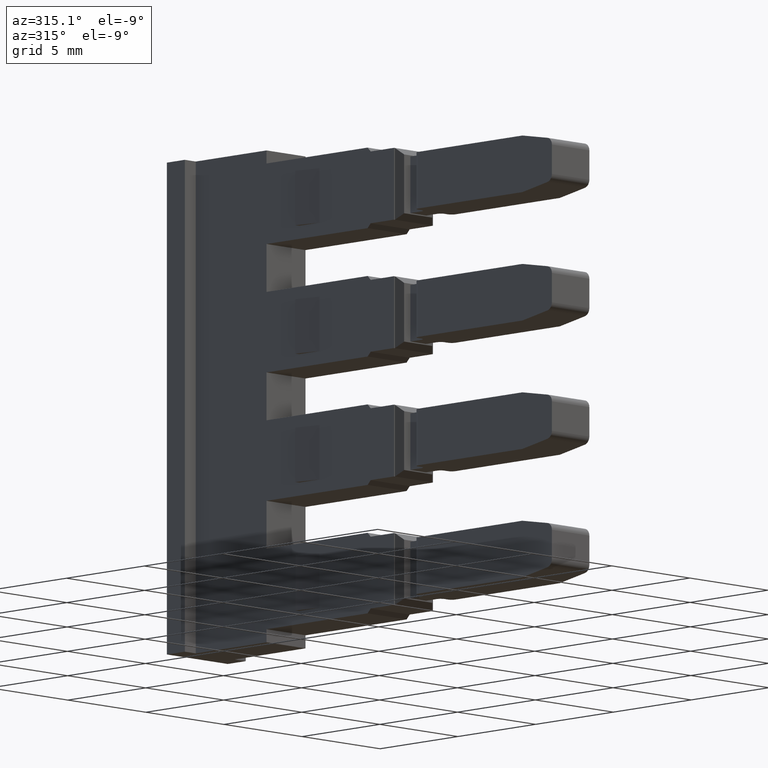
[diagram: clean part render]
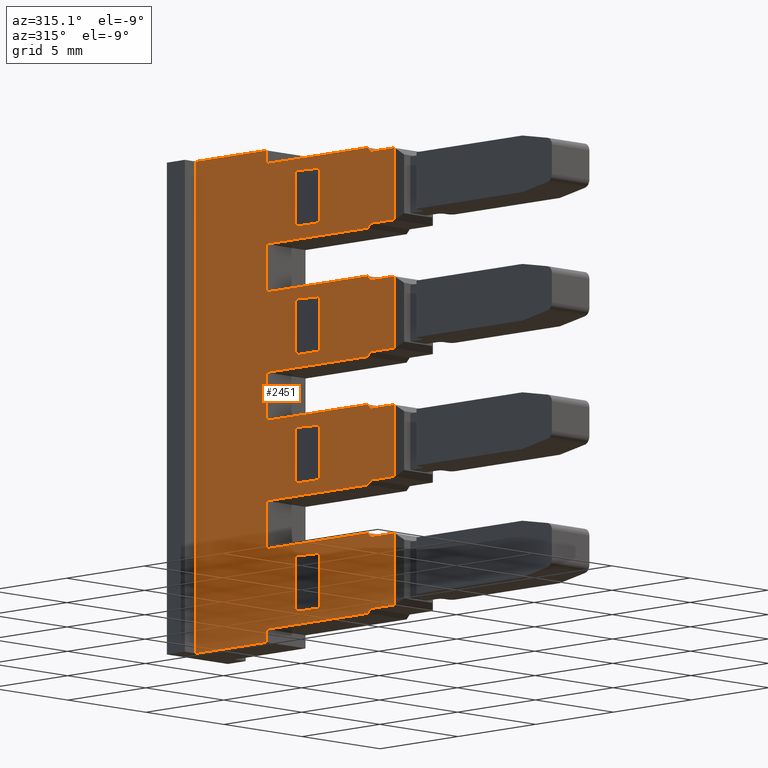
[diagram: same view with one face highlighted and labeled with its STEP entity id]
A machine part, auxiliary view. The second image highlights one B-rep face of the part: STEP entity #2451.
In plain terms, the highlighted planar face has unit normal (1, -0, 0).
Its self-contained STEP definition (entity closure, byte-faithful):
#236 = EDGE_LOOP ( 'NONE', ( #4934, #4998, #5008, #4992, #5015, #4952, #4900, #4958, #5026, #4931, #4944, #4908, #4942, #4948, #5006, #4910, #4930, #4912, #4957, #4914, #4950, #4967, #4961, #4907, #4946, #4902, #4923, #4919, #4983, #5003, #4932, #4964, #4901, #5002, #5005, #5018 ) ) ;
#244 = EDGE_LOOP ( 'NONE', ( #4903, #4904, #4949, #4951 ) ) ;
#265 = EDGE_LOOP ( 'NONE', ( #4975, #4959, #4943, #5024 ) ) ;
#274 = EDGE_LOOP ( 'NONE', ( #5020, #4965, #4915, #4940 ) ) ;
#281 = EDGE_LOOP ( 'NONE', ( #4993, #4947, #4911, #4916 ) ) ;
#493 = LINE ( 'NONE', #522, #1699 ) ;
#519 = DIRECTION ( 'NONE',  ( 0.0000000000000000000, -1.000000000000000000, 3.397305977084603400E-014 ) ) ;
#522 = CARTESIAN_POINT ( 'NONE',  ( 1456.769071211365800, 1003.994679537520100, -83.64999999998819600 ) ) ;
#537 = LINE ( 'NONE', #539, #1671 ) ;
#539 = CARTESIAN_POINT ( 'NONE',  ( 1456.769071211365800, 995.7946795375190700, -81.14999999999173500 ) ) ;
#557 = DIRECTION ( 'NONE',  ( 0.0000000000000000000, -5.266048633100518400E-014, 1.000000000000000000 ) ) ;
#560 = DIRECTION ( 'NONE',  ( 0.0000000000000000000, 0.0000000000000000000, -1.000000000000000000 ) ) ;
#575 = CARTESIAN_POINT ( 'NONE',  ( 1456.769071211365800, 1003.994679537513400, -100.1158559843420100 ) ) ;
#579 = LINE ( 'NONE', #575, #1676 ) ;
#605 = CARTESIAN_POINT ( 'NONE',  ( 1456.769071211365800, 995.7926795375192300, -100.1158559843420100 ) ) ;
#608 = DIRECTION ( 'NONE',  ( 0.0000000000000000000, -0.7071067811881911500, -0.7071067811849037800 ) ) ;
#616 = LINE ( 'NONE', #663, #1781 ) ;
#619 = LINE ( 'NONE', #625, #1732 ) ;
#625 = CARTESIAN_POINT ( 'NONE',  ( 1456.769071211365800, 1003.994679537520100, -83.64999999998819600 ) ) ;
#628 = DIRECTION ( 'NONE',  ( 0.0000000000000000000, -5.266048633100518400E-014, 1.000000000000000000 ) ) ;
#636 = LINE ( 'NONE', #649, #1756 ) ;
#640 = LINE ( 'NONE', #605, #1693 ) ;
#646 = DIRECTION ( 'NONE',  ( 0.0000000000000000000, 0.0000000000000000000, -1.000000000000000000 ) ) ;
#649 = CARTESIAN_POINT ( 'NONE',  ( 1456.769071211365800, 997.4946795375115000, -89.44999999998889000 ) ) ;
#654 = DIRECTION ( 'NONE',  ( 0.0000000000000000000, 1.000000000000000000, 0.0000000000000000000 ) ) ;
#662 = CARTESIAN_POINT ( 'NONE',  ( 1456.769071211365800, 997.4946795375182100, -77.64999999999381000 ) ) ;
#663 = CARTESIAN_POINT ( 'NONE',  ( 1456.769071211365800, 997.4946795375185500, -77.64999999999025700 ) ) ;
#664 = DIRECTION ( 'NONE',  ( 0.0000000000000000000, -1.000000000000000000, -9.317217804676702700E-014 ) ) ;
#665 = LINE ( 'NONE', #691, #1737 ) ;
#672 = DIRECTION ( 'NONE',  ( 0.0000000000000000000, -0.7071067811865999800, -0.7071067811864950600 ) ) ;
#673 = LINE ( 'NONE', #662, #1774 ) ;
#676 = CARTESIAN_POINT ( 'NONE',  ( 1456.769071211366100, 1000.592679537514000, -78.25000000009424600 ) ) ;
#678 = LINE ( 'NONE', #676, #1736 ) ;
#691 = CARTESIAN_POINT ( 'NONE',  ( 1456.769071211365800, 1007.642679537518000, -77.84999999999017500 ) ) ;
#692 = DIRECTION ( 'NONE',  ( -0.0000000000000000000, -1.000000000000000000, -0.0000000000000000000 ) ) ;
#741 = LINE ( 'NONE', #768, #1782 ) ;
#743 = LINE ( 'NONE', #756, #1741 ) ;
#745 = DIRECTION ( 'NONE',  ( 0.0000000000000000000, -1.000000000000000000, -9.317217804676702700E-014 ) ) ;
#748 = CARTESIAN_POINT ( 'NONE',  ( 1456.769071211365800, 1004.894679537514000, -77.04999999999309100 ) ) ;
#750 = LINE ( 'NONE', #767, #1778 ) ;
#753 = LINE ( 'NONE', #748, #1724 ) ;
#756 = CARTESIAN_POINT ( 'NONE',  ( 1456.769071211365800, 997.4946795375182100, -81.34999999999109800 ) ) ;
#757 = LINE ( 'NONE', #774, #1775 ) ;
#759 = DIRECTION ( 'NONE',  ( -1.843447636399818300E-030, 1.000000000000000000, 3.582728517178750100E-016 ) ) ;
#760 = DIRECTION ( 'NONE',  ( 0.0000000000000000000, 0.0000000000000000000, -1.000000000000000000 ) ) ;
#763 = CARTESIAN_POINT ( 'NONE',  ( 1456.769071211365800, 1001.106402704003100, -92.94999999998999800 ) ) ;
#764 = LINE ( 'NONE', #785, #1779 ) ;
#765 = DIRECTION ( 'NONE',  ( 0.0000000000000000000, 0.7071067811877986800, -0.7071067811852963500 ) ) ;
#767 = CARTESIAN_POINT ( 'NONE',  ( 1456.769071211365800, 1003.994679537506500, -106.0158559843420000 ) ) ;
#768 = CARTESIAN_POINT ( 'NONE',  ( 1456.769071211365800, 997.4946795375112700, -89.44999999998903200 ) ) ;
#771 = DIRECTION ( 'NONE',  ( 0.0000000000000000000, 0.7071067811902275200, -0.7071067811828676300 ) ) ;
#774 = CARTESIAN_POINT ( 'NONE',  ( 1456.769071211365800, 997.2946795375179400, -81.14999999999176300 ) ) ;
#777 = DIRECTION ( 'NONE',  ( 0.0000000000000000000, 1.000000000000000000, 6.401193638283150300E-015 ) ) ;
#780 = DIRECTION ( 'NONE',  ( -3.766016875894430600E-044, -1.000000000000000000, -2.195768806939460200E-029 ) ) ;
#782 = LINE ( 'NONE', #763, #1773 ) ;
#785 = CARTESIAN_POINT ( 'NONE',  ( 1456.769071211365800, 997.2946795375111200, -92.94999999998997000 ) ) ;
#791 = LINE ( 'NONE', #798, #1826 ) ;
#793 = CARTESIAN_POINT ( 'NONE',  ( 1456.769071211366100, 1001.892679537514000, -80.75000000009424600 ) ) ;
#794 = DIRECTION ( 'NONE',  ( 0.0000000000000000000, 0.0000000000000000000, 1.000000000000000000 ) ) ;
#798 = CARTESIAN_POINT ( 'NONE',  ( 1456.769071211365800, 997.2946795375181600, -87.04999999998996400 ) ) ;
#799 = LINE ( 'NONE', #793, #1846 ) ;
#804 = DIRECTION ( 'NONE',  ( 0.0000000000000000000, 0.7071067811902275200, -0.7071067811828676300 ) ) ;
#805 = LINE ( 'NONE', #824, #1795 ) ;
#806 = DIRECTION ( 'NONE',  ( 0.0000000000000000000, 1.000000000000000000, 3.433133262256396200E-014 ) ) ;
#824 = CARTESIAN_POINT ( 'NONE',  ( 1456.769071211365800, 995.7946795375052000, -95.54999999998840100 ) ) ;
#843 = CARTESIAN_POINT ( 'NONE',  ( 1456.769071211365800, 997.4946795375112700, -93.14999999998640600 ) ) ;
#848 = CARTESIAN_POINT ( 'NONE',  ( 1456.769071211365400, 1000.592679537514600, -86.65000000009425200 ) ) ;
#849 = DIRECTION ( 'NONE',  ( 0.0000000000000000000, 1.000000000000000000, 0.0000000000000000000 ) ) ;
#851 = LINE ( 'NONE', #862, #1820 ) ;
#852 = DIRECTION ( 'NONE',  ( 0.0000000000000000000, 1.000000000000000000, -9.281390519504917400E-014 ) ) ;
#861 = CARTESIAN_POINT ( 'NONE',  ( 1456.769071211365800, 995.7926795375053600, -111.9158559843420000 ) ) ;
#862 = CARTESIAN_POINT ( 'NONE',  ( 1456.769071211365400, 1001.892679537507800, -92.55000000009425800 ) ) ;
#872 = DIRECTION ( 'NONE',  ( 0.0000000000000000000, 0.0000000000000000000, 1.000000000000000000 ) ) ;
#873 = LINE ( 'NONE', #848, #1821 ) ;
#874 = LINE ( 'NONE', #843, #1824 ) ;
#875 = LINE ( 'NONE', #861, #1833 ) ;
#876 = DIRECTION ( 'NONE',  ( 0.0000000000000000000, 0.0000000000000000000, -1.000000000000000000 ) ) ;
#878 = LINE ( 'NONE', #888, #1796 ) ;
#885 = LINE ( 'NONE', #919, #1787 ) ;
#886 = CARTESIAN_POINT ( 'NONE',  ( 1456.769071211365800, 1004.894679537500000, -99.64999999998701700 ) ) ;
#888 = CARTESIAN_POINT ( 'NONE',  ( 1456.769071211366100, 1000.592679537514000, -80.75000000009424600 ) ) ;
#896 = DIRECTION ( 'NONE',  ( 0.0000000000000000000, 1.000000000000000000, 0.0000000000000000000 ) ) ;
#897 = DIRECTION ( 'NONE',  ( 0.0000000000000000000, 1.000000000000000000, 0.0000000000000000000 ) ) ;
#898 = CARTESIAN_POINT ( 'NONE',  ( 1456.769071211365800, 997.4946795375182100, -83.54999999998904100 ) ) ;
#899 = DIRECTION ( 'NONE',  ( -3.766016875894430600E-044, -1.000000000000000000, -2.195768806939460200E-029 ) ) ;
#900 = LINE ( 'NONE', #937, #1831 ) ;
#901 = LINE ( 'NONE', #886, #1788 ) ;
#905 = DIRECTION ( 'NONE',  ( 0.0000000000000000000, 1.000000000000000000, -9.281390519504917400E-014 ) ) ;
#906 = LINE ( 'NONE', #913, #1790 ) ;
#909 = LINE ( 'NONE', #921, #1814 ) ;
#913 = CARTESIAN_POINT ( 'NONE',  ( 1456.769071211365400, 1000.592679537507700, -90.05000000009424400 ) ) ;
#919 = CARTESIAN_POINT ( 'NONE',  ( 1456.769071211365800, 995.7926795375123000, -106.0158559843420000 ) ) ;
#920 = LINE ( 'NONE', #898, #1835 ) ;
#921 = CARTESIAN_POINT ( 'NONE',  ( 1456.769071211365800, 1001.106402703996000, -98.84999999999000400 ) ) ;
#923 = DIRECTION ( 'NONE',  ( 0.0000000000000000000, 1.000000000000000000, 6.401193638283150300E-015 ) ) ;
#926 = DIRECTION ( 'NONE',  ( 0.0000000000000000000, 0.0000000000000000000, -1.000000000000000000 ) ) ;
#927 = LINE ( 'NONE', #956, #1840 ) ;
#930 = CARTESIAN_POINT ( 'NONE',  ( 1456.769071211366100, 1000.592679537514000, -80.75000000009424600 ) ) ;
#931 = DIRECTION ( 'NONE',  ( 0.0000000000000000000, 0.0000000000000000000, 1.000000000000000000 ) ) ;
#936 = LINE ( 'NONE', #940, #1798 ) ;
#937 = CARTESIAN_POINT ( 'NONE',  ( 1456.769071211365800, 1008.542679537515100, -100.1158559843420100 ) ) ;
#940 = CARTESIAN_POINT ( 'NONE',  ( 1456.769071211365800, 995.7946795375121400, -89.64999999998841000 ) ) ;
#950 = DIRECTION ( 'NONE',  ( 0.0000000000000000000, 1.000000000000000000, 0.0000000000000000000 ) ) ;
#953 = DIRECTION ( 'NONE',  ( 0.0000000000000000000, 1.000000000000000000, 3.433133262256396200E-014 ) ) ;
#956 = CARTESIAN_POINT ( 'NONE',  ( 1456.769071211365400, 1000.592679537500700, -98.45000000009424900 ) ) ;
#959 = LINE ( 'NONE', #930, #1801 ) ;
#960 = DIRECTION ( 'NONE',  ( -0.0000000000000000000, -0.0000000000000000000, 1.000000000000000000 ) ) ;
#1154 = VECTOR ( 'NONE', #3882, 1000.000000000000000 ) ;
#1157 = VECTOR ( 'NONE', #3876, 1000.000000000000000 ) ;
#1169 = VECTOR ( 'NONE', #3867, 1000.000000000000100 ) ;
#1191 = VECTOR ( 'NONE', #3861, 1000.000000000000000 ) ;
#1193 = VECTOR ( 'NONE', #3902, 1000.000000000000000 ) ;
#1211 = VECTOR ( 'NONE', #3858, 1000.000000000000000 ) ;
#1213 = VECTOR ( 'NONE', #3872, 1000.000000000000000 ) ;
#1466 = AXIS2_PLACEMENT_3D ( 'NONE', #2754, #2747, #2716 ) ;
#1671 = VECTOR ( 'NONE', #519, 1000.000000000000000 ) ;
#1676 = VECTOR ( 'NONE', #560, 1000.000000000000000 ) ;
#1693 = VECTOR ( 'NONE', #646, 1000.000000000000000 ) ;
#1699 = VECTOR ( 'NONE', #557, 1000.000000000000000 ) ;
#1724 = VECTOR ( 'NONE', #745, 1000.000000000000000 ) ;
#1732 = VECTOR ( 'NONE', #628, 1000.000000000000000 ) ;
#1736 = VECTOR ( 'NONE', #654, 1000.000000000000000 ) ;
#1737 = VECTOR ( 'NONE', #692, 1000.000000000000000 ) ;
#1741 = VECTOR ( 'NONE', #759, 1000.000000000000000 ) ;
#1756 = VECTOR ( 'NONE', #608, 1000.000000000000100 ) ;
#1773 = VECTOR ( 'NONE', #777, 1000.000000000000000 ) ;
#1774 = VECTOR ( 'NONE', #664, 1000.000000000000000 ) ;
#1775 = VECTOR ( 'NONE', #765, 1000.000000000000000 ) ;
#1778 = VECTOR ( 'NONE', #760, 1000.000000000000000 ) ;
#1779 = VECTOR ( 'NONE', #771, 1000.000000000000000 ) ;
#1781 = VECTOR ( 'NONE', #672, 1000.000000000000000 ) ;
#1782 = VECTOR ( 'NONE', #780, 1000.000000000000000 ) ;
#1787 = VECTOR ( 'NONE', #926, 1000.000000000000000 ) ;
#1788 = VECTOR ( 'NONE', #905, 1000.000000000000000 ) ;
#1790 = VECTOR ( 'NONE', #897, 1000.000000000000000 ) ;
#1795 = VECTOR ( 'NONE', #806, 1000.000000000000000 ) ;
#1796 = VECTOR ( 'NONE', #896, 1000.000000000000000 ) ;
#1798 = VECTOR ( 'NONE', #953, 1000.000000000000000 ) ;
#1801 = VECTOR ( 'NONE', #931, 1000.000000000000000 ) ;
#1814 = VECTOR ( 'NONE', #923, 1000.000000000000000 ) ;
#1820 = VECTOR ( 'NONE', #872, 1000.000000000000000 ) ;
#1821 = VECTOR ( 'NONE', #849, 1000.000000000000000 ) ;
#1824 = VECTOR ( 'NONE', #852, 1000.000000000000000 ) ;
#1826 = VECTOR ( 'NONE', #804, 1000.000000000000000 ) ;
#1831 = VECTOR ( 'NONE', #960, 1000.000000000000000 ) ;
#1833 = VECTOR ( 'NONE', #876, 1000.000000000000000 ) ;
#1835 = VECTOR ( 'NONE', #899, 1000.000000000000000 ) ;
#1840 = VECTOR ( 'NONE', #950, 1000.000000000000000 ) ;
#1846 = VECTOR ( 'NONE', #794, 1000.000000000000000 ) ;
#1853 = VECTOR ( 'NONE', #3760, 1000.000000000000000 ) ;
#1857 = VECTOR ( 'NONE', #3806, 1000.000000000000100 ) ;
#1870 = VECTOR ( 'NONE', #4738, 1000.000000000000000 ) ;
#1876 = VECTOR ( 'NONE', #3832, 1000.000000000000000 ) ;
#1881 = VECTOR ( 'NONE', #4710, 1000.000000000000000 ) ;
#1882 = VECTOR ( 'NONE', #3791, 1000.000000000000000 ) ;
#1883 = VECTOR ( 'NONE', #3831, 1000.000000000000000 ) ;
#1885 = VECTOR ( 'NONE', #3801, 1000.000000000000000 ) ;
#1889 = VECTOR ( 'NONE', #4707, 1000.000000000000000 ) ;
#1891 = VECTOR ( 'NONE', #3756, 1000.000000000000000 ) ;
#1896 = VECTOR ( 'NONE', #4715, 1000.000000000000000 ) ;
#1935 = EDGE_CURVE ( 'NONE', #5254, #5233, #493, .T. ) ;
#1946 = EDGE_CURVE ( 'NONE', #5327, #5267, #537, .T. ) ;
#1955 = EDGE_CURVE ( 'NONE', #5264, #5248, #579, .T. ) ;
#1968 = EDGE_CURVE ( 'NONE', #5266, #5267, #640, .T. ) ;
#1970 = EDGE_CURVE ( 'NONE', #5355, #5394, #636, .T. ) ;
#1979 = EDGE_CURVE ( 'NONE', #5359, #5244, #619, .T. ) ;
#1984 = EDGE_CURVE ( 'NONE', #5275, #5252, #616, .T. ) ;
#1991 = EDGE_CURVE ( 'NONE', #5252, #5266, #665, .T. ) ;
#1992 = EDGE_CURVE ( 'NONE', #5309, #5299, #678, .T. ) ;
#1994 = EDGE_CURVE ( 'NONE', #5248, #5275, #673, .T. ) ;
#2011 = EDGE_CURVE ( 'NONE', #5327, #5316, #757, .T. ) ;
#2013 = EDGE_CURVE ( 'NONE', #5298, #5281, #764, .T. ) ;
#2016 = EDGE_CURVE ( 'NONE', #5280, #5298, #782, .T. ) ;
#2017 = EDGE_CURVE ( 'NONE', #5295, #5338, #750, .T. ) ;
#2019 = EDGE_CURVE ( 'NONE', #5254, #5355, #741, .T. ) ;
#2022 = EDGE_CURVE ( 'NONE', #5232, #5264, #753, .T. ) ;
#2024 = EDGE_CURVE ( 'NONE', #5316, #5244, #743, .T. ) ;
#2031 = EDGE_CURVE ( 'NONE', #5315, #5299, #799, .T. ) ;
#2036 = EDGE_CURVE ( 'NONE', #5366, #5353, #791, .T. ) ;
#2037 = EDGE_CURVE ( 'NONE', #5393, #5360, #805, .T. ) ;
#2045 = EDGE_CURVE ( 'NONE', #5393, #5363, #875, .T. ) ;
#2047 = EDGE_CURVE ( 'NONE', #5379, #5398, #851, .T. ) ;
#2049 = EDGE_CURVE ( 'NONE', #5281, #5295, #874, .T. ) ;
#2052 = EDGE_CURVE ( 'NONE', #5350, #5371, #873, .T. ) ;
#2058 = EDGE_CURVE ( 'NONE', #5401, #5398, #906, .T. ) ;
#2059 = EDGE_CURVE ( 'NONE', #5362, #5315, #878, .T. ) ;
#2060 = EDGE_CURVE ( 'NONE', #5363, #5381, #909, .T. ) ;
#2068 = EDGE_CURVE ( 'NONE', #5342, #5280, #885, .T. ) ;
#2070 = EDGE_CURVE ( 'NONE', #5359, #5367, #920, .T. ) ;
#2071 = EDGE_CURVE ( 'NONE', #5377, #5303, #901, .T. ) ;
#2072 = EDGE_CURVE ( 'NONE', #5343, #5369, #927, .T. ) ;
#2075 = EDGE_CURVE ( 'NONE', #5303, #5232, #900, .T. ) ;
#2081 = EDGE_CURVE ( 'NONE', #5342, #5394, #936, .T. ) ;
#2083 = EDGE_CURVE ( 'NONE', #5362, #5309, #959, .T. ) ;
#2092 = EDGE_CURVE ( 'NONE', #5402, #5370, #4726, .T. ) ;
#2093 = EDGE_CURVE ( 'NONE', #5371, #5356, #4706, .T. ) ;
#2095 = EDGE_CURVE ( 'NONE', #5372, #5368, #4733, .T. ) ;
#2096 = EDGE_CURVE ( 'NONE', #5369, #5373, #4737, .T. ) ;
#2099 = EDGE_CURVE ( 'NONE', #5368, #5366, #4709, .T. ) ;
#2101 = EDGE_CURVE ( 'NONE', #5354, #5356, #4744, .T. ) ;
#2104 = EDGE_CURVE ( 'NONE', #5358, #5401, #3757, .T. ) ;
#2114 = EDGE_CURVE ( 'NONE', #5350, #5354, #3833, .T. ) ;
#2116 = EDGE_CURVE ( 'NONE', #5367, #5351, #3790, .T. ) ;
#2118 = EDGE_CURVE ( 'NONE', #5370, #5377, #3819, .T. ) ;
#2126 = EDGE_CURVE ( 'NONE', #5353, #5233, #3820, .T. ) ;
#2134 = EDGE_CURVE ( 'NONE', #5358, #5379, #3866, .T. ) ;
#2137 = EDGE_CURVE ( 'NONE', #5338, #5380, #3817, .T. ) ;
#2140 = EDGE_CURVE ( 'NONE', #5380, #5360, #3887, .T. ) ;
#2141 = EDGE_CURVE ( 'NONE', #5372, #5351, #3888, .T. ) ;
#2142 = EDGE_CURVE ( 'NONE', #5341, #5373, #3862, .T. ) ;
#2143 = EDGE_CURVE ( 'NONE', #5343, #5341, #3878, .T. ) ;
#2148 = EDGE_CURVE ( 'NONE', #5381, #5402, #3895, .T. ) ;
#2451 = ADVANCED_FACE ( 'NONE', ( #2709, #2703, #2729, #2721, #2722 ), #2751, .F. ) ;
#2703 = FACE_BOUND ( 'NONE', #265, .T. ) ;
#2709 = FACE_OUTER_BOUND ( 'NONE', #236, .T. ) ;
#2716 = DIRECTION ( 'NONE',  ( 0.0000000000000000000, 0.0000000000000000000, -1.000000000000000000 ) ) ;
#2721 = FACE_BOUND ( 'NONE', #281, .T. ) ;
#2722 = FACE_BOUND ( 'NONE', #244, .T. ) ;
#2729 = FACE_BOUND ( 'NONE', #274, .T. ) ;
#2747 = DIRECTION ( 'NONE',  ( 1.000000000000000000, -0.0000000000000000000, 0.0000000000000000000 ) ) ;
#2751 = PLANE ( 'NONE',  #1466 ) ;
#2754 = CARTESIAN_POINT ( 'NONE',  ( 1456.769071211365800, 1007.642679537518000, -100.1158559843420100 ) ) ;
#3348 = CARTESIAN_POINT ( 'NONE',  ( 1456.769071211365800, 1003.994679537513400, -87.24999999998694000 ) ) ;
#3394 = CARTESIAN_POINT ( 'NONE',  ( 1456.769071211365800, 1008.542679537517400, -77.04999999999270700 ) ) ;
#3400 = CARTESIAN_POINT ( 'NONE',  ( 1456.769071211365800, 1003.994679537512800, -77.64999999999328400 ) ) ;
#3401 = CARTESIAN_POINT ( 'NONE',  ( 1456.769071211365800, 997.2946795375181600, -77.84999999999023100 ) ) ;
#3402 = CARTESIAN_POINT ( 'NONE',  ( 1456.769071211365800, 1003.994679537520300, -81.34999999999124000 ) ) ;
#3404 = CARTESIAN_POINT ( 'NONE',  ( 1456.769071211365800, 995.7926795375192300, -77.84999999999014600 ) ) ;
#3407 = CARTESIAN_POINT ( 'NONE',  ( 1456.769071211365800, 995.7926795375192300, -81.14999999999173500 ) ) ;
#3416 = CARTESIAN_POINT ( 'NONE',  ( 1456.769071211365800, 997.4946795375102500, -93.14999999998751400 ) ) ;
#3437 = CARTESIAN_POINT ( 'NONE',  ( 1456.769071211365800, 1003.994679537513400, -77.04999999999287800 ) ) ;
#3439 = CARTESIAN_POINT ( 'NONE',  ( 1456.769071211365800, 995.7926795375123000, -92.94999999999002700 ) ) ;
#3441 = CARTESIAN_POINT ( 'NONE',  ( 1456.769071211365800, 1003.994679537506500, -93.14999999998693200 ) ) ;
#3447 = CARTESIAN_POINT ( 'NONE',  ( 1456.769071211365800, 997.2946795375111200, -92.94999999998995600 ) ) ;
#3453 = CARTESIAN_POINT ( 'NONE',  ( 1456.769071211365800, 1003.994679537513400, -89.44999999998901800 ) ) ;
#3454 = CARTESIAN_POINT ( 'NONE',  ( 1456.769071211366100, 1001.892679537514000, -78.25000000009424600 ) ) ;
#3455 = CARTESIAN_POINT ( 'NONE',  ( 1456.769071211365800, 997.4946795375173000, -77.64999999999308500 ) ) ;
#3465 = CARTESIAN_POINT ( 'NONE',  ( 1456.769071211365800, 1003.994679537520300, -83.54999999998902600 ) ) ;
#3471 = CARTESIAN_POINT ( 'NONE',  ( 1456.769071211365400, 1001.892679537514700, -84.15000000009425200 ) ) ;
#3472 = CARTESIAN_POINT ( 'NONE',  ( 1456.769071211365800, 997.2946795375181600, -87.04999999998995000 ) ) ;
#3474 = CARTESIAN_POINT ( 'NONE',  ( 1456.769071211365800, 1001.892679537514000, -80.75000000009424600 ) ) ;
#3477 = CARTESIAN_POINT ( 'NONE',  ( 1456.769071211365800, 997.2946795375179400, -81.14999999999176300 ) ) ;
#3478 = CARTESIAN_POINT ( 'NONE',  ( 1456.769071211365800, 997.2946795375041800, -95.54999999998837300 ) ) ;
#3479 = CARTESIAN_POINT ( 'NONE',  ( 1456.769071211365800, 997.2946795375180500, -83.74999999998836100 ) ) ;
#3480 = CARTESIAN_POINT ( 'NONE',  ( 1456.769071211365800, 1000.592679537514000, -78.25000000009424600 ) ) ;
#3485 = CARTESIAN_POINT ( 'NONE',  ( 1456.769071211365800, 1000.592679537512400, -86.65000000009425200 ) ) ;
#3491 = CARTESIAN_POINT ( 'NONE',  ( 1456.769071211365800, 1003.994679537506300, -95.34999999998902400 ) ) ;
#3494 = CARTESIAN_POINT ( 'NONE',  ( 1456.769071211365800, 997.4946795375111600, -89.44999999998871900 ) ) ;
#3500 = CARTESIAN_POINT ( 'NONE',  ( 1456.769071211365800, 995.7926795375123000, -89.64999999998839500 ) ) ;
#3501 = CARTESIAN_POINT ( 'NONE',  ( 1456.769071211365800, 1000.592679537498400, -98.45000000009424900 ) ) ;
#3503 = CARTESIAN_POINT ( 'NONE',  ( 1456.769071211365800, 1008.542679537502500, -99.64999999998723000 ) ) ;
#3506 = CARTESIAN_POINT ( 'NONE',  ( 1456.769071211365800, 997.4946795375181000, -81.34999999999145400 ) ) ;
#3508 = CARTESIAN_POINT ( 'NONE',  ( 1456.769071211365800, 1000.592679537500700, -95.95000000009424900 ) ) ;
#3510 = CARTESIAN_POINT ( 'NONE',  ( 1456.769071211365800, 1000.592679537514600, -84.15000000009425200 ) ) ;
#3512 = CARTESIAN_POINT ( 'NONE',  ( 1456.769071211365800, 1000.592679537505500, -92.55000000009425800 ) ) ;
#3514 = CARTESIAN_POINT ( 'NONE',  ( 1456.769071211365800, 997.4946795375173000, -87.24999999998752300 ) ) ;
#3518 = CARTESIAN_POINT ( 'NONE',  ( 1456.769071211365800, 1000.592679537515100, -80.75000000009424600 ) ) ;
#3519 = CARTESIAN_POINT ( 'NONE',  ( 1456.769071211365800, 995.7926795375053600, -98.84999999999003300 ) ) ;
#3530 = CARTESIAN_POINT ( 'NONE',  ( 1456.769071211365800, 997.4946795375042300, -95.34999999998872500 ) ) ;
#3534 = CARTESIAN_POINT ( 'NONE',  ( 1456.769071211365800, 997.4946795375033200, -99.04999999998752000 ) ) ;
#3538 = CARTESIAN_POINT ( 'NONE',  ( 1456.769071211365800, 1001.892679537500700, -98.45000000009424900 ) ) ;
#3540 = CARTESIAN_POINT ( 'NONE',  ( 1456.769071211365800, 997.2946795375042900, -98.84999999998996100 ) ) ;
#3541 = CARTESIAN_POINT ( 'NONE',  ( 1456.769071211365400, 1001.892679537507800, -90.05000000009424400 ) ) ;
#3545 = CARTESIAN_POINT ( 'NONE',  ( 1456.769071211365800, 997.4946795375181000, -83.54999999998871400 ) ) ;
#3546 = CARTESIAN_POINT ( 'NONE',  ( 1456.769071211365800, 995.7926795375192300, -87.04999999999002100 ) ) ;
#3547 = CARTESIAN_POINT ( 'NONE',  ( 1456.769071211365800, 1003.994679537498800, -99.64999999998703100 ) ) ;
#3551 = CARTESIAN_POINT ( 'NONE',  ( 1456.769071211365800, 995.7926795375192300, -83.74999999998839000 ) ) ;
#3560 = CARTESIAN_POINT ( 'NONE',  ( 1456.769071211365400, 1001.892679537500700, -95.95000000009424900 ) ) ;
#3561 = CARTESIAN_POINT ( 'NONE',  ( 1456.769071211365800, 997.2946795375110000, -89.64999999998836700 ) ) ;
#3565 = CARTESIAN_POINT ( 'NONE',  ( 1456.769071211365800, 1003.994679537499500, -99.04999999998693700 ) ) ;
#3572 = CARTESIAN_POINT ( 'NONE',  ( 1456.769071211365800, 1001.892679537514700, -86.65000000009425200 ) ) ;
#3574 = CARTESIAN_POINT ( 'NONE',  ( 1456.769071211365800, 1001.892679537507800, -92.55000000009425800 ) ) ;
#3575 = CARTESIAN_POINT ( 'NONE',  ( 1456.769071211365800, 1000.592679537507700, -90.05000000009424400 ) ) ;
#3577 = CARTESIAN_POINT ( 'NONE',  ( 1456.769071211365800, 995.7926795375053600, -95.54999999998840100 ) ) ;
#3756 = DIRECTION ( 'NONE',  ( 0.0000000000000000000, 0.0000000000000000000, 1.000000000000000000 ) ) ;
#3757 = LINE ( 'NONE', #3762, #1891 ) ;
#3760 = DIRECTION ( 'NONE',  ( 0.0000000000000000000, 1.000000000000000000, 6.401193638283150300E-015 ) ) ;
#3762 = CARTESIAN_POINT ( 'NONE',  ( 1456.769071211365400, 1000.592679537507700, -92.55000000009425800 ) ) ;
#3767 = CARTESIAN_POINT ( 'NONE',  ( 1456.769071211365400, 1000.592679537514600, -84.15000000009425200 ) ) ;
#3781 = CARTESIAN_POINT ( 'NONE',  ( 1456.769071211365800, 1001.106402704010000, -87.04999999998999300 ) ) ;
#3790 = LINE ( 'NONE', #3830, #1857 ) ;
#3791 = DIRECTION ( 'NONE',  ( 0.0000000000000000000, 1.000000000000000000, 0.0000000000000000000 ) ) ;
#3801 = DIRECTION ( 'NONE',  ( 0.0000000000000000000, 0.0000000000000000000, -1.000000000000000000 ) ) ;
#3806 = DIRECTION ( 'NONE',  ( 0.0000000000000000000, -0.7071067811881911500, -0.7071067811849037800 ) ) ;
#3814 = CARTESIAN_POINT ( 'NONE',  ( 1456.769071211365800, 1003.994679537499500, -111.9158559843420000 ) ) ;
#3817 = LINE ( 'NONE', #3851, #1211 ) ;
#3819 = LINE ( 'NONE', #3814, #1885 ) ;
#3820 = LINE ( 'NONE', #3835, #1876 ) ;
#3830 = CARTESIAN_POINT ( 'NONE',  ( 1456.769071211365800, 997.4946795375184400, -83.54999999998888400 ) ) ;
#3831 = DIRECTION ( 'NONE',  ( 0.0000000000000000000, 0.0000000000000000000, 1.000000000000000000 ) ) ;
#3832 = DIRECTION ( 'NONE',  ( 0.0000000000000000000, 1.000000000000000000, -9.281390519504917400E-014 ) ) ;
#3833 = LINE ( 'NONE', #3836, #1883 ) ;
#3835 = CARTESIAN_POINT ( 'NONE',  ( 1456.769071211365800, 997.4946795375182100, -87.24999999998641400 ) ) ;
#3836 = CARTESIAN_POINT ( 'NONE',  ( 1456.769071211365400, 1000.592679537514600, -86.65000000009425200 ) ) ;
#3849 = CARTESIAN_POINT ( 'NONE',  ( 1456.769071211365800, 997.4946795375045700, -95.34999999998888100 ) ) ;
#3851 = CARTESIAN_POINT ( 'NONE',  ( 1456.769071211365800, 997.4946795375043400, -95.34999999998903800 ) ) ;
#3856 = CARTESIAN_POINT ( 'NONE',  ( 1456.769071211365400, 1000.592679537507700, -92.55000000009425800 ) ) ;
#3858 = DIRECTION ( 'NONE',  ( -3.766016875894430600E-044, -1.000000000000000000, -2.195768806939460200E-029 ) ) ;
#3859 = CARTESIAN_POINT ( 'NONE',  ( 1456.769071211365800, 995.7946795375190700, -83.74999999998840400 ) ) ;
#3861 = DIRECTION ( 'NONE',  ( 0.0000000000000000000, 1.000000000000000000, 3.433133262256396200E-014 ) ) ;
#3862 = LINE ( 'NONE', #3870, #1213 ) ;
#3866 = LINE ( 'NONE', #3856, #1157 ) ;
#3867 = DIRECTION ( 'NONE',  ( 0.0000000000000000000, -0.7071067811881911500, -0.7071067811849037800 ) ) ;
#3870 = CARTESIAN_POINT ( 'NONE',  ( 1456.769071211365400, 1000.592679537500700, -95.95000000009424900 ) ) ;
#3872 = DIRECTION ( 'NONE',  ( 0.0000000000000000000, 1.000000000000000000, 0.0000000000000000000 ) ) ;
#3876 = DIRECTION ( 'NONE',  ( 0.0000000000000000000, 1.000000000000000000, 0.0000000000000000000 ) ) ;
#3878 = LINE ( 'NONE', #3879, #1154 ) ;
#3879 = CARTESIAN_POINT ( 'NONE',  ( 1456.769071211365400, 1000.592679537500700, -98.45000000009424900 ) ) ;
#3882 = DIRECTION ( 'NONE',  ( 0.0000000000000000000, 0.0000000000000000000, 1.000000000000000000 ) ) ;
#3887 = LINE ( 'NONE', #3849, #1169 ) ;
#3888 = LINE ( 'NONE', #3859, #1191 ) ;
#3895 = LINE ( 'NONE', #3905, #1193 ) ;
#3902 = DIRECTION ( 'NONE',  ( 0.0000000000000000000, 0.7071067811902275200, -0.7071067811828676300 ) ) ;
#3905 = CARTESIAN_POINT ( 'NONE',  ( 1456.769071211365800, 997.2946795375042900, -98.84999999998997600 ) ) ;
#4706 = LINE ( 'NONE', #4718, #1881 ) ;
#4707 = DIRECTION ( 'NONE',  ( 0.0000000000000000000, 0.0000000000000000000, -1.000000000000000000 ) ) ;
#4709 = LINE ( 'NONE', #3781, #1853 ) ;
#4710 = DIRECTION ( 'NONE',  ( 0.0000000000000000000, 0.0000000000000000000, 1.000000000000000000 ) ) ;
#4715 = DIRECTION ( 'NONE',  ( 0.0000000000000000000, 1.000000000000000000, -9.281390519504917400E-014 ) ) ;
#4718 = CARTESIAN_POINT ( 'NONE',  ( 1456.769071211365400, 1001.892679537514700, -86.65000000009425200 ) ) ;
#4725 = CARTESIAN_POINT ( 'NONE',  ( 1456.769071211365800, 997.4946795375043400, -99.04999999998641200 ) ) ;
#4726 = LINE ( 'NONE', #4725, #1896 ) ;
#4733 = LINE ( 'NONE', #4734, #1889 ) ;
#4734 = CARTESIAN_POINT ( 'NONE',  ( 1456.769071211365800, 995.7926795375192300, -100.1158559843420100 ) ) ;
#4737 = LINE ( 'NONE', #4743, #1870 ) ;
#4738 = DIRECTION ( 'NONE',  ( 0.0000000000000000000, 0.0000000000000000000, 1.000000000000000000 ) ) ;
#4743 = CARTESIAN_POINT ( 'NONE',  ( 1456.769071211365400, 1001.892679537500700, -98.45000000009424900 ) ) ;
#4744 = LINE ( 'NONE', #3767, #1882 ) ;
#4900 = ORIENTED_EDGE ( 'NONE', *, *, #1970, .F. ) ;
#4901 = ORIENTED_EDGE ( 'NONE', *, *, #2045, .F. ) ;
#4902 = ORIENTED_EDGE ( 'NONE', *, *, #2022, .F. ) ;
#4903 = ORIENTED_EDGE ( 'NONE', *, *, #2143, .F. ) ;
#4904 = ORIENTED_EDGE ( 'NONE', *, *, #2072, .T. ) ;
#4907 = ORIENTED_EDGE ( 'NONE', *, *, #1994, .F. ) ;
#4908 = ORIENTED_EDGE ( 'NONE', *, *, #2099, .F. ) ;
#4910 = ORIENTED_EDGE ( 'NONE', *, *, #2070, .F. ) ;
#4911 = ORIENTED_EDGE ( 'NONE', *, *, #2047, .T. ) ;
#4912 = ORIENTED_EDGE ( 'NONE', *, *, #2024, .F. ) ;
#4914 = ORIENTED_EDGE ( 'NONE', *, *, #1946, .T. ) ;
#4915 = ORIENTED_EDGE ( 'NONE', *, *, #2093, .T. ) ;
#4916 = ORIENTED_EDGE ( 'NONE', *, *, #2058, .F. ) ;
#4919 = ORIENTED_EDGE ( 'NONE', *, *, #2071, .F. ) ;
#4923 = ORIENTED_EDGE ( 'NONE', *, *, #2075, .F. ) ;
#4930 = ORIENTED_EDGE ( 'NONE', *, *, #1979, .T. ) ;
#4931 = ORIENTED_EDGE ( 'NONE', *, *, #2126, .F. ) ;
#4932 = ORIENTED_EDGE ( 'NONE', *, *, #2148, .F. ) ;
#4934 = ORIENTED_EDGE ( 'NONE', *, *, #2017, .F. ) ;
#4940 = ORIENTED_EDGE ( 'NONE', *, *, #2101, .F. ) ;
#4942 = ORIENTED_EDGE ( 'NONE', *, *, #2095, .F. ) ;
#4943 = ORIENTED_EDGE ( 'NONE', *, *, #2031, .T. ) ;
#4944 = ORIENTED_EDGE ( 'NONE', *, *, #2036, .F. ) ;
#4946 = ORIENTED_EDGE ( 'NONE', *, *, #1955, .F. ) ;
#4947 = ORIENTED_EDGE ( 'NONE', *, *, #2134, .T. ) ;
#4948 = ORIENTED_EDGE ( 'NONE', *, *, #2141, .T. ) ;
#4949 = ORIENTED_EDGE ( 'NONE', *, *, #2096, .T. ) ;
#4950 = ORIENTED_EDGE ( 'NONE', *, *, #1968, .F. ) ;
#4951 = ORIENTED_EDGE ( 'NONE', *, *, #2142, .F. ) ;
#4952 = ORIENTED_EDGE ( 'NONE', *, *, #2081, .T. ) ;
#4957 = ORIENTED_EDGE ( 'NONE', *, *, #2011, .F. ) ;
#4958 = ORIENTED_EDGE ( 'NONE', *, *, #2019, .F. ) ;
#4959 = ORIENTED_EDGE ( 'NONE', *, *, #2059, .T. ) ;
#4961 = ORIENTED_EDGE ( 'NONE', *, *, #1984, .F. ) ;
#4964 = ORIENTED_EDGE ( 'NONE', *, *, #2060, .F. ) ;
#4965 = ORIENTED_EDGE ( 'NONE', *, *, #2052, .T. ) ;
#4967 = ORIENTED_EDGE ( 'NONE', *, *, #1991, .F. ) ;
#4975 = ORIENTED_EDGE ( 'NONE', *, *, #2083, .F. ) ;
#4983 = ORIENTED_EDGE ( 'NONE', *, *, #2118, .F. ) ;
#4992 = ORIENTED_EDGE ( 'NONE', *, *, #2016, .F. ) ;
#4993 = ORIENTED_EDGE ( 'NONE', *, *, #2104, .F. ) ;
#4998 = ORIENTED_EDGE ( 'NONE', *, *, #2049, .F. ) ;
#5002 = ORIENTED_EDGE ( 'NONE', *, *, #2037, .T. ) ;
#5003 = ORIENTED_EDGE ( 'NONE', *, *, #2092, .F. ) ;
#5005 = ORIENTED_EDGE ( 'NONE', *, *, #2140, .F. ) ;
#5006 = ORIENTED_EDGE ( 'NONE', *, *, #2116, .F. ) ;
#5008 = ORIENTED_EDGE ( 'NONE', *, *, #2013, .F. ) ;
#5015 = ORIENTED_EDGE ( 'NONE', *, *, #2068, .F. ) ;
#5018 = ORIENTED_EDGE ( 'NONE', *, *, #2137, .F. ) ;
#5020 = ORIENTED_EDGE ( 'NONE', *, *, #2114, .F. ) ;
#5024 = ORIENTED_EDGE ( 'NONE', *, *, #1992, .F. ) ;
#5026 = ORIENTED_EDGE ( 'NONE', *, *, #1935, .T. ) ;
#5232 = VERTEX_POINT ( 'NONE', #3394 ) ;
#5233 = VERTEX_POINT ( 'NONE', #3348 ) ;
#5244 = VERTEX_POINT ( 'NONE', #3402 ) ;
#5248 = VERTEX_POINT ( 'NONE', #3400 ) ;
#5252 = VERTEX_POINT ( 'NONE', #3401 ) ;
#5254 = VERTEX_POINT ( 'NONE', #3453 ) ;
#5264 = VERTEX_POINT ( 'NONE', #3437 ) ;
#5266 = VERTEX_POINT ( 'NONE', #3404 ) ;
#5267 = VERTEX_POINT ( 'NONE', #3407 ) ;
#5275 = VERTEX_POINT ( 'NONE', #3455 ) ;
#5280 = VERTEX_POINT ( 'NONE', #3439 ) ;
#5281 = VERTEX_POINT ( 'NONE', #3416 ) ;
#5295 = VERTEX_POINT ( 'NONE', #3441 ) ;
#5298 = VERTEX_POINT ( 'NONE', #3447 ) ;
#5299 = VERTEX_POINT ( 'NONE', #3454 ) ;
#5303 = VERTEX_POINT ( 'NONE', #3503 ) ;
#5309 = VERTEX_POINT ( 'NONE', #3480 ) ;
#5315 = VERTEX_POINT ( 'NONE', #3474 ) ;
#5316 = VERTEX_POINT ( 'NONE', #3506 ) ;
#5327 = VERTEX_POINT ( 'NONE', #3477 ) ;
#5338 = VERTEX_POINT ( 'NONE', #3491 ) ;
#5341 = VERTEX_POINT ( 'NONE', #3508 ) ;
#5342 = VERTEX_POINT ( 'NONE', #3500 ) ;
#5343 = VERTEX_POINT ( 'NONE', #3501 ) ;
#5350 = VERTEX_POINT ( 'NONE', #3485 ) ;
#5351 = VERTEX_POINT ( 'NONE', #3479 ) ;
#5353 = VERTEX_POINT ( 'NONE', #3514 ) ;
#5354 = VERTEX_POINT ( 'NONE', #3510 ) ;
#5355 = VERTEX_POINT ( 'NONE', #3494 ) ;
#5356 = VERTEX_POINT ( 'NONE', #3471 ) ;
#5358 = VERTEX_POINT ( 'NONE', #3512 ) ;
#5359 = VERTEX_POINT ( 'NONE', #3465 ) ;
#5360 = VERTEX_POINT ( 'NONE', #3478 ) ;
#5362 = VERTEX_POINT ( 'NONE', #3518 ) ;
#5363 = VERTEX_POINT ( 'NONE', #3519 ) ;
#5366 = VERTEX_POINT ( 'NONE', #3472 ) ;
#5367 = VERTEX_POINT ( 'NONE', #3545 ) ;
#5368 = VERTEX_POINT ( 'NONE', #3546 ) ;
#5369 = VERTEX_POINT ( 'NONE', #3538 ) ;
#5370 = VERTEX_POINT ( 'NONE', #3565 ) ;
#5371 = VERTEX_POINT ( 'NONE', #3572 ) ;
#5372 = VERTEX_POINT ( 'NONE', #3551 ) ;
#5373 = VERTEX_POINT ( 'NONE', #3560 ) ;
#5377 = VERTEX_POINT ( 'NONE', #3547 ) ;
#5379 = VERTEX_POINT ( 'NONE', #3574 ) ;
#5380 = VERTEX_POINT ( 'NONE', #3530 ) ;
#5381 = VERTEX_POINT ( 'NONE', #3540 ) ;
#5393 = VERTEX_POINT ( 'NONE', #3577 ) ;
#5394 = VERTEX_POINT ( 'NONE', #3561 ) ;
#5398 = VERTEX_POINT ( 'NONE', #3541 ) ;
#5401 = VERTEX_POINT ( 'NONE', #3575 ) ;
#5402 = VERTEX_POINT ( 'NONE', #3534 ) ;